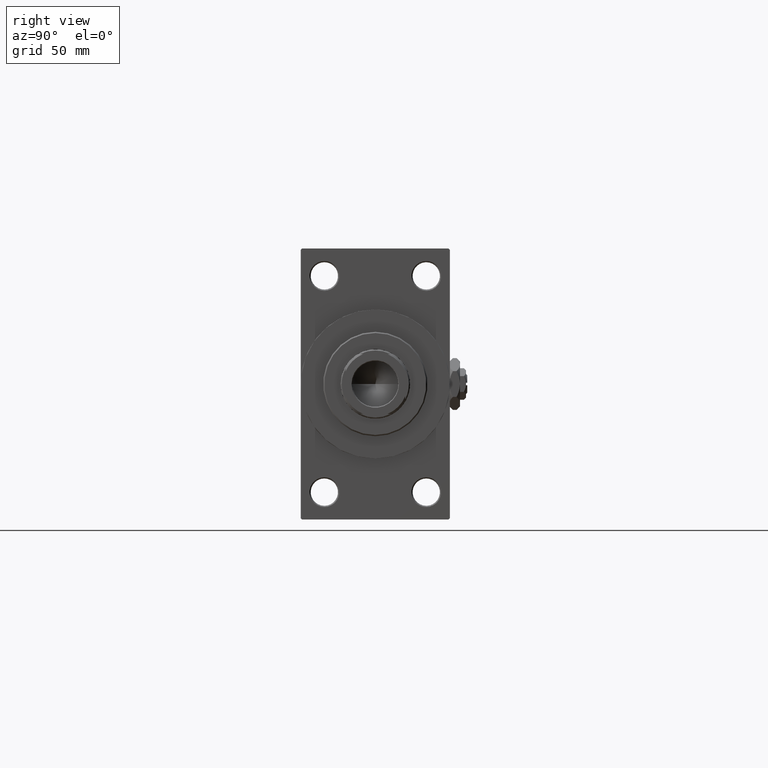
[diagram: clean part render]
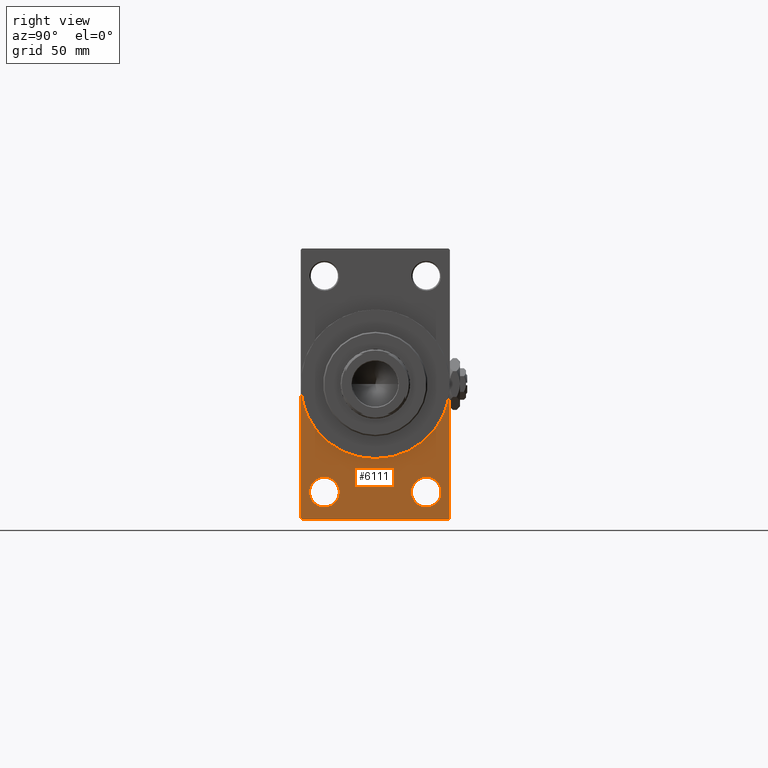
[diagram: same view with one face highlighted and labeled with its STEP entity id]
A machine part, right view. The second image highlights one B-rep face of the part: STEP entity #6111.
In plain terms, the highlighted planar face has unit normal (-1, 0, 0).
Its self-contained STEP definition (entity closure, byte-faithful):
#120 = VERTEX_POINT ( 'NONE', #15388 ) ;
#861 = EDGE_CURVE ( 'NONE', #29611, #120, #34186, .T. ) ;
#1357 = VECTOR ( 'NONE', #31881, 1000.000000000000114 ) ;
#1706 = DIRECTION ( 'NONE',  ( -1.000000000000000000, 0.000000000000000000, -0.000000000000000000 ) ) ;
#3391 = CARTESIAN_POINT ( 'NONE',  ( 218.0000000000000284, -30.00000000000000000, 0.000000000000000000 ) ) ;
#3561 = DIRECTION ( 'NONE',  ( 0.000000000000000000, 0.000000000000000000, -1.000000000000000000 ) ) ;
#4585 = DIRECTION ( 'NONE',  ( 0.000000000000000000, 0.7071067811865352493, -0.7071067811865597852 ) ) ;
#4958 = LINE ( 'NONE', #16178, #1357 ) ;
#6111 = ADVANCED_FACE ( 'NONE', ( #37883, #34153, #38131 ), #22672, .F. ) ;
#6185 = VERTEX_POINT ( 'NONE', #28317 ) ;
#6215 = AXIS2_PLACEMENT_3D ( 'NONE', #18363, #33570, #10881 ) ;
#6615 = ORIENTED_EDGE ( 'NONE', *, *, #32293, .T. ) ;
#6751 = VERTEX_POINT ( 'NONE', #37643 ) ;
#7660 = DIRECTION ( 'NONE',  ( 0.000000000000000000, -1.000000000000000000, -1.156482317317871478E-16 ) ) ;
#7908 = ORIENTED_EDGE ( 'NONE', *, *, #22535, .F. ) ;
#8126 = VERTEX_POINT ( 'NONE', #44573 ) ;
#8238 = VECTOR ( 'NONE', #3561, 1000.000000000000000 ) ;
#8584 = LINE ( 'NONE', #42209, #26081 ) ;
#8734 = VERTEX_POINT ( 'NONE', #37772 ) ;
#9147 = DIRECTION ( 'NONE',  ( -0.000000000000000000, 0.000000000000000000, 1.000000000000000000 ) ) ;
#9264 = DIRECTION ( 'NONE',  ( 0.000000000000000000, 0.000000000000000000, 1.000000000000000000 ) ) ;
#9350 = CARTESIAN_POINT ( 'NONE',  ( 218.0000000000000284, 30.00000000000000000, 0.000000000000000000 ) ) ;
#9399 = AXIS2_PLACEMENT_3D ( 'NONE', #45098, #21928, #49105 ) ;
#9510 = LINE ( 'NONE', #42905, #37528 ) ;
#9867 = ORIENTED_EDGE ( 'NONE', *, *, #45315, .T. ) ;
#10119 = VERTEX_POINT ( 'NONE', #33503 ) ;
#10812 = AXIS2_PLACEMENT_3D ( 'NONE', #14631, #47113, #37065 ) ;
#10881 = DIRECTION ( 'NONE',  ( 0.000000000000000000, 0.000000000000000000, -1.000000000000000000 ) ) ;
#10940 = ORIENTED_EDGE ( 'NONE', *, *, #23435, .T. ) ;
#11031 = AXIS2_PLACEMENT_3D ( 'NONE', #13669, #1706, #47563 ) ;
#11443 = AXIS2_PLACEMENT_3D ( 'NONE', #12880, #19419, #9147 ) ;
#12286 = VERTEX_POINT ( 'NONE', #9350 ) ;
#12675 = VECTOR ( 'NONE', #7660, 1000.000000000000000 ) ;
#12880 = CARTESIAN_POINT ( 'NONE',  ( 218.0000000000000284, 0.000000000000000000, 0.000000000000000000 ) ) ;
#13417 = CIRCLE ( 'NONE', #11031, 6.000000000000116351 ) ;
#13669 = CARTESIAN_POINT ( 'NONE',  ( 218.0000000000000284, 20.50000000000000000, -43.50000000000000000 ) ) ;
#14631 = CARTESIAN_POINT ( 'NONE',  ( 218.0000000000000284, -20.50000000000000000, -43.50000000000000000 ) ) ;
#14887 = CARTESIAN_POINT ( 'NONE',  ( 218.0000000000000284, 29.99999999999999645, -54.49999999999999289 ) ) ;
#15388 = CARTESIAN_POINT ( 'NONE',  ( 218.0000000000000284, 3.673940397442059178E-15, -30.00000000000000000 ) ) ;
#16156 = AXIS2_PLACEMENT_3D ( 'NONE', #21189, #39652, #9264 ) ;
#16157 = VERTEX_POINT ( 'NONE', #18058 ) ;
#16178 = CARTESIAN_POINT ( 'NONE',  ( 218.0000000000000284, 29.99999999999999645, -54.00000000000002132 ) ) ;
#17073 = EDGE_CURVE ( 'NONE', #6751, #8126, #4958, .T. ) ;
#18058 = CARTESIAN_POINT ( 'NONE',  ( 218.0000000000000284, -20.50000000000000000, -49.50000000000011369 ) ) ;
#18363 = CARTESIAN_POINT ( 'NONE',  ( 218.0000000000000284, 0.000000000000000000, 0.000000000000000000 ) ) ;
#18437 = CIRCLE ( 'NONE', #16156, 6.000000000000116351 ) ;
#19419 = DIRECTION ( 'NONE',  ( -1.000000000000000000, 0.000000000000000000, -0.000000000000000000 ) ) ;
#20494 = EDGE_LOOP ( 'NONE', ( #37159, #10940 ) ) ;
#21189 = CARTESIAN_POINT ( 'NONE',  ( 218.0000000000000284, -20.50000000000000000, -43.50000000000000000 ) ) ;
#21660 = CIRCLE ( 'NONE', #25650, 6.000000000000116351 ) ;
#21796 = EDGE_CURVE ( 'NONE', #22556, #31495, #8584, .T. ) ;
#21811 = ORIENTED_EDGE ( 'NONE', *, *, #35822, .T. ) ;
#21928 = DIRECTION ( 'NONE',  ( 1.000000000000000000, 0.000000000000000000, 0.000000000000000000 ) ) ;
#22535 = EDGE_CURVE ( 'NONE', #120, #12286, #25298, .T. ) ;
#22556 = VERTEX_POINT ( 'NONE', #34146 ) ;
#22672 = PLANE ( 'NONE',  #11443 ) ;
#23355 = CARTESIAN_POINT ( 'NONE',  ( 218.0000000000000284, -29.49999999999997513, -54.50000000000000000 ) ) ;
#23435 = EDGE_CURVE ( 'NONE', #6185, #8734, #13417, .T. ) ;
#23670 = ORIENTED_EDGE ( 'NONE', *, *, #17073, .T. ) ;
#24704 = DIRECTION ( 'NONE',  ( 0.000000000000000000, 0.000000000000000000, -1.000000000000000000 ) ) ;
#25298 = CIRCLE ( 'NONE', #9399, 30.00000000000000000 ) ;
#25650 = AXIS2_PLACEMENT_3D ( 'NONE', #27383, #42581, #39337 ) ;
#25865 = EDGE_CURVE ( 'NONE', #6751, #31495, #41790, .T. ) ;
#26081 = VECTOR ( 'NONE', #4585, 1000.000000000000000 ) ;
#27383 = CARTESIAN_POINT ( 'NONE',  ( 218.0000000000000284, 20.50000000000000000, -43.50000000000000000 ) ) ;
#28317 = CARTESIAN_POINT ( 'NONE',  ( 218.0000000000000284, 20.50000000000000000, -37.49999999999987921 ) ) ;
#29611 = VERTEX_POINT ( 'NONE', #3391 ) ;
#30987 = EDGE_CURVE ( 'NONE', #12286, #8126, #9510, .T. ) ;
#31495 = VERTEX_POINT ( 'NONE', #23355 ) ;
#31605 = ORIENTED_EDGE ( 'NONE', *, *, #861, .F. ) ;
#31881 = DIRECTION ( 'NONE',  ( -0.000000000000000000, 0.7071067811865474617, 0.7071067811865474617 ) ) ;
#32293 = EDGE_CURVE ( 'NONE', #29611, #22556, #45422, .T. ) ;
#33503 = CARTESIAN_POINT ( 'NONE',  ( 218.0000000000000284, -20.50000000000000000, -37.49999999999987921 ) ) ;
#33570 = DIRECTION ( 'NONE',  ( 1.000000000000000000, 0.000000000000000000, 0.000000000000000000 ) ) ;
#34070 = EDGE_CURVE ( 'NONE', #8734, #6185, #21660, .T. ) ;
#34146 = CARTESIAN_POINT ( 'NONE',  ( 218.0000000000000284, -30.00000000000000000, -53.99999999999995737 ) ) ;
#34153 = FACE_BOUND ( 'NONE', #20494, .T. ) ;
#34186 = CIRCLE ( 'NONE', #6215, 30.00000000000000000 ) ;
#35822 = EDGE_CURVE ( 'NONE', #16157, #10119, #18437, .T. ) ;
#36325 = ORIENTED_EDGE ( 'NONE', *, *, #30987, .F. ) ;
#36715 = EDGE_LOOP ( 'NONE', ( #21811, #9867 ) ) ;
#37065 = DIRECTION ( 'NONE',  ( 0.000000000000000000, 0.000000000000000000, 1.000000000000000000 ) ) ;
#37159 = ORIENTED_EDGE ( 'NONE', *, *, #34070, .T. ) ;
#37528 = VECTOR ( 'NONE', #24704, 1000.000000000000000 ) ;
#37643 = CARTESIAN_POINT ( 'NONE',  ( 218.0000000000000284, 29.50000000000002132, -54.49999999999999289 ) ) ;
#37697 = EDGE_LOOP ( 'NONE', ( #6615, #44801, #40796, #23670, #36325, #7908, #31605 ) ) ;
#37707 = CARTESIAN_POINT ( 'NONE',  ( 218.0000000000000284, -30.00000000000000000, 54.50000000000000000 ) ) ;
#37772 = CARTESIAN_POINT ( 'NONE',  ( 218.0000000000000284, 20.50000000000000000, -49.50000000000011369 ) ) ;
#37883 = FACE_BOUND ( 'NONE', #36715, .T. ) ;
#38131 = FACE_OUTER_BOUND ( 'NONE', #37697, .T. ) ;
#39337 = DIRECTION ( 'NONE',  ( 0.000000000000000000, 0.000000000000000000, 1.000000000000000000 ) ) ;
#39652 = DIRECTION ( 'NONE',  ( -1.000000000000000000, 0.000000000000000000, -0.000000000000000000 ) ) ;
#40796 = ORIENTED_EDGE ( 'NONE', *, *, #25865, .F. ) ;
#41790 = LINE ( 'NONE', #14887, #12675 ) ;
#42209 = CARTESIAN_POINT ( 'NONE',  ( 218.0000000000000284, -29.49999999999997513, -54.50000000000000000 ) ) ;
#42581 = DIRECTION ( 'NONE',  ( -1.000000000000000000, 0.000000000000000000, -0.000000000000000000 ) ) ;
#42905 = CARTESIAN_POINT ( 'NONE',  ( 218.0000000000000284, 29.99999999999999645, 54.49999999999999289 ) ) ;
#44573 = CARTESIAN_POINT ( 'NONE',  ( 218.0000000000000284, 29.99999999999999645, -54.00000000000002132 ) ) ;
#44801 = ORIENTED_EDGE ( 'NONE', *, *, #21796, .T. ) ;
#45098 = CARTESIAN_POINT ( 'NONE',  ( 218.0000000000000284, 0.000000000000000000, 0.000000000000000000 ) ) ;
#45315 = EDGE_CURVE ( 'NONE', #10119, #16157, #45813, .T. ) ;
#45422 = LINE ( 'NONE', #37707, #8238 ) ;
#45813 = CIRCLE ( 'NONE', #10812, 6.000000000000116351 ) ;
#47113 = DIRECTION ( 'NONE',  ( -1.000000000000000000, 0.000000000000000000, -0.000000000000000000 ) ) ;
#47563 = DIRECTION ( 'NONE',  ( 0.000000000000000000, 0.000000000000000000, 1.000000000000000000 ) ) ;
#49105 = DIRECTION ( 'NONE',  ( 0.000000000000000000, 0.000000000000000000, -1.000000000000000000 ) ) ;